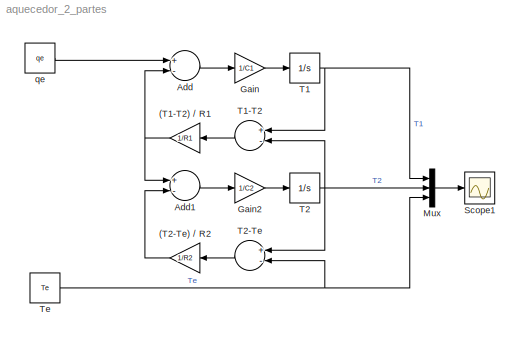
MODEL aquecedor_2_partes
KIND model
BLOCK [Gain] (T1-T2) // R1
  Gain = 1/R1
  OutDataTypeStr = Inherit: Inherit via internal rule
  ParamDataTypeStr = Inherit: Inherit via internal rule
  SID = 7
  SaturateOnIntegerOverflow = off
BLOCK [Gain] (T2-Te) // R2
  Gain = 1/R2
  OutDataTypeStr = Inherit: Inherit via internal rule
  ParamDataTypeStr = Inherit: Inherit via internal rule
  SID = 10
  SaturateOnIntegerOverflow = off
BLOCK [Sum] Add
  InputSameDT = off
  Inputs = +-
  OutDataTypeStr = Inherit: Inherit via internal rule
  Ports = [2, 1]
  SID = 2
  SaturateOnIntegerOverflow = off
BLOCK [Sum] Add1
  InputSameDT = off
  Inputs = +-
  OutDataTypeStr = Inherit: Inherit via internal rule
  Ports = [2, 1]
  SID = 8
  SaturateOnIntegerOverflow = off
BLOCK [Gain] Gain
  Gain = 1/C1
  OutDataTypeStr = Inherit: Inherit via internal rule
  ParamDataTypeStr = Inherit: Inherit via internal rule
  SID = 3
  SaturateOnIntegerOverflow = off
BLOCK [Gain] Gain2
  Gain = 1/C2
  OutDataTypeStr = Inherit: Inherit via internal rule
  ParamDataTypeStr = Inherit: Inherit via internal rule
  SID = 9
  SaturateOnIntegerOverflow = off
BLOCK [Mux] Mux
  DisplayOption = bar
  Inputs = 3
  Ports = [3, 1]
  SID = 24
BLOCK [Scope] Scope1
  DataFormat = StructureWithTime
  Floating = off
  LimitDataPoints = off
  NumInputPorts = 1
  Ports = [1]
  SID = 25
  SampleTime = 0
  SaveName = ScopeData1
  ShowLegends = off
BLOCK [Integrator] T1
  InitialCondition = Te
  Ports = [1, 1]
  SID = 4
BLOCK [Sum] T1-T2
  InputSameDT = off
  Inputs = +-
  OutDataTypeStr = Inherit: Inherit via internal rule
  Ports = [2, 1]
  SID = 5
  SaturateOnIntegerOverflow = off
BLOCK [Integrator] T2
  InitialCondition = Te
  Ports = [1, 1]
  SID = 11
BLOCK [Sum] T2-Te
  InputSameDT = off
  Inputs = +-
  OutDataTypeStr = Inherit: Inherit via internal rule
  Ports = [2, 1]
  SID = 12
  SaturateOnIntegerOverflow = off
BLOCK [Constant] Te
  SID = 13
  Value = Te
BLOCK [Constant] qe
  SID = 1
  Value = qe
NET (T1-T2) // R1:1 -> Add1:1, Add:2
LINE (T2-Te) // R2:1 -> Add1:2
LINE Add1:1 -> Gain2:1
LINE Add:1 -> Gain:1
LINE Gain2:1 -> T2:1
LINE Gain:1 -> T1:1
LINE Mux:1 -> Scope1:1
LINE T1-T2:1 -> (T1-T2) // R1:1
NET T1:1 -> Mux:1, T1-T2:1
LINE T2-Te:1 -> (T2-Te) // R2:1
NET T2:1 -> Mux:2, T1-T2:2, T2-Te:1
NET Te:1 -> Mux:3, T2-Te:2
LINE qe:1 -> Add:1
note: NET lines group one-source signal fan-out (src -> all destinations, sorted); 1:1 wires keep LINE
